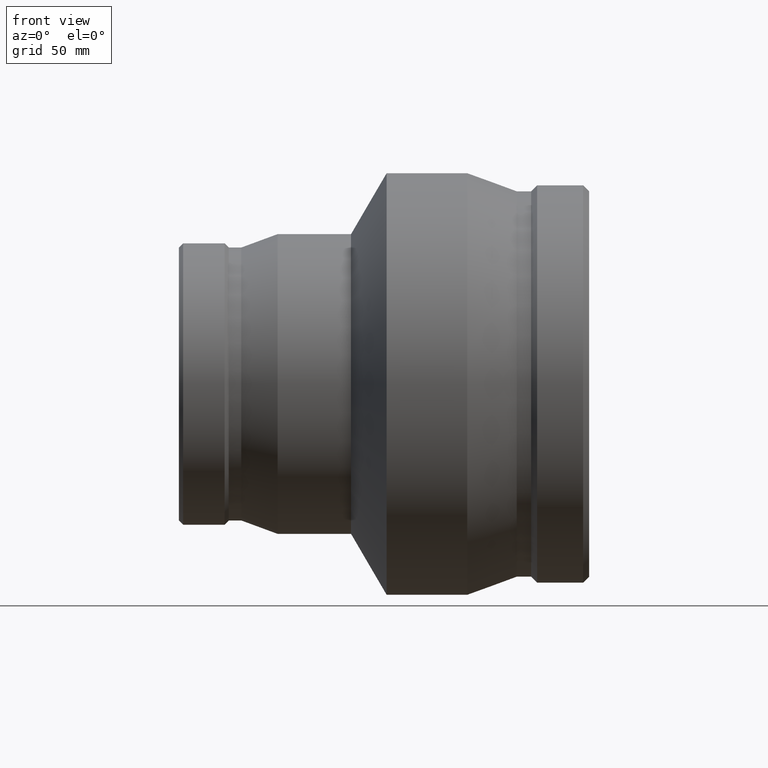
[diagram: clean part render]
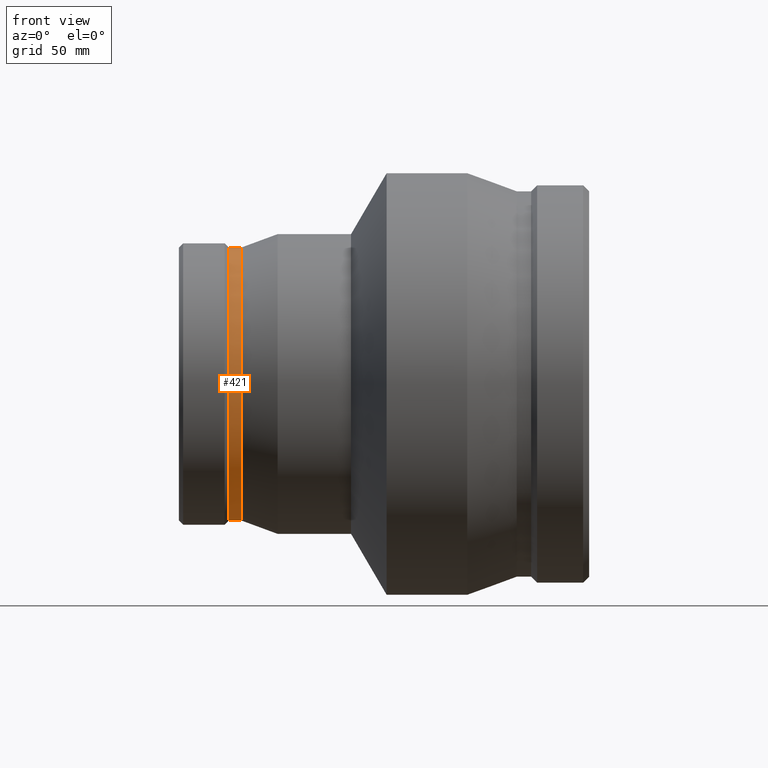
[diagram: same view with one face highlighted and labeled with its STEP entity id]
A machine part, front view. The second image highlights one B-rep face of the part: STEP entity #421.
In plain terms, the highlighted cylindrical surface (bore or boss wall) has radius 64.2819 mm, axis along (1, 0, 0).
Its self-contained STEP definition (entity closure, byte-faithful):
#44=FACE_BOUND('',#154,.T.);
#73=CYLINDRICAL_SURFACE('',#477,64.2819);
#99=FACE_OUTER_BOUND('',#153,.T.);
#153=EDGE_LOOP('',(#346));
#154=EDGE_LOOP('',(#347));
#214=CIRCLE('',#476,64.2819);
#215=CIRCLE('',#478,64.2819);
#253=VERTEX_POINT('',#791);
#254=VERTEX_POINT('',#794);
#292=EDGE_CURVE('',#253,#253,#214,.T.);
#293=EDGE_CURVE('',#254,#254,#215,.T.);
#346=ORIENTED_EDGE('',*,*,#292,.T.);
#347=ORIENTED_EDGE('',*,*,#293,.F.);
#421=ADVANCED_FACE('',(#99,#44),#73,.T.);
#476=AXIS2_PLACEMENT_3D('',#792,#584,#585);
#477=AXIS2_PLACEMENT_3D('',#793,#586,#587);
#478=AXIS2_PLACEMENT_3D('',#795,#588,#589);
#584=DIRECTION('center_axis',(1.,0.,0.));
#585=DIRECTION('ref_axis',(0.,0.,-1.));
#586=DIRECTION('center_axis',(1.,0.,0.));
#587=DIRECTION('ref_axis',(0.,1.,0.));
#588=DIRECTION('center_axis',(1.,0.,0.));
#589=DIRECTION('ref_axis',(0.,0.,-1.));
#791=CARTESIAN_POINT('',(-73.01,64.2819,0.));
#792=CARTESIAN_POINT('Origin',(-73.01,0.,0.));
#793=CARTESIAN_POINT('Origin',(-70.07375,0.,0.));
#794=CARTESIAN_POINT('',(-67.1375,64.2819,0.));
#795=CARTESIAN_POINT('Origin',(-67.1375,0.,0.));